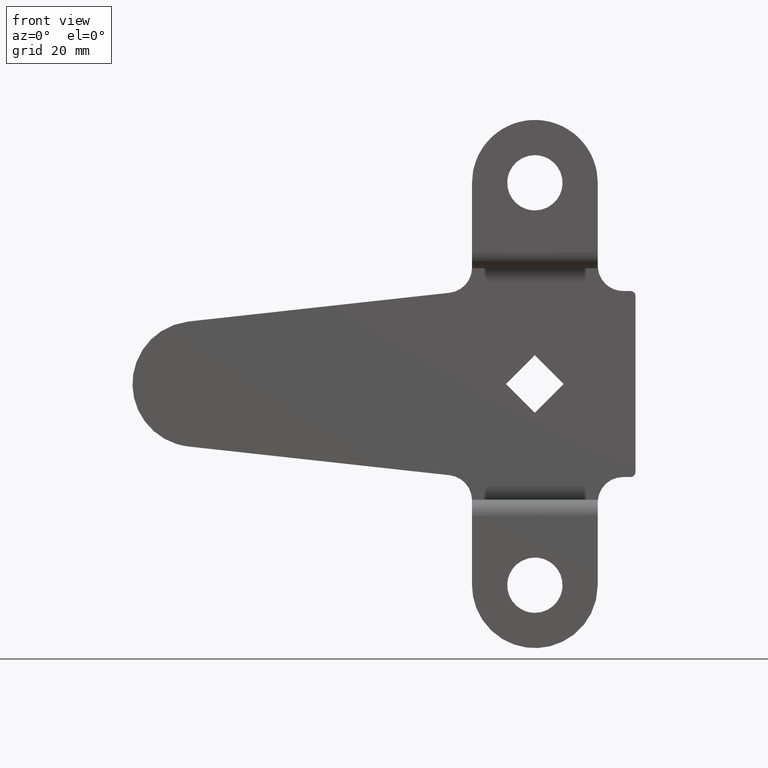
[diagram: clean part render]
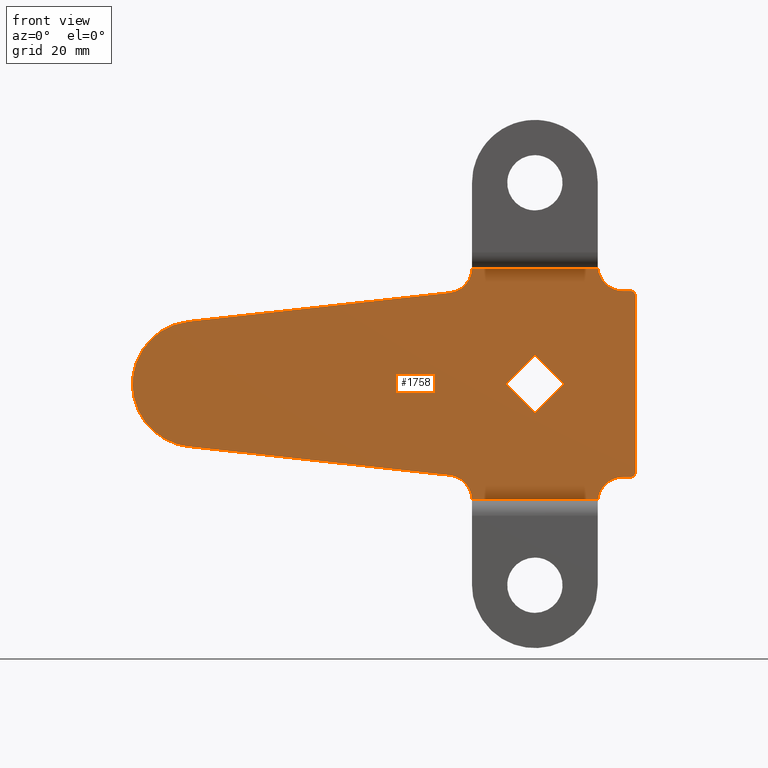
[diagram: same view with one face highlighted and labeled with its STEP entity id]
A machine part, front view. The second image highlights one B-rep face of the part: STEP entity #1758.
In plain terms, the highlighted face is a freeform B-spline surface patch.
Its self-contained STEP definition (entity closure, byte-faithful):
#422=CARTESIAN_POINT('',(0.0,-3.200000000000000,-5.728000000000000));
#423=VERTEX_POINT('',#422);
#429=CARTESIAN_POINT('',(5.727999999999810,-3.200000000000000,0.0));
#430=VERTEX_POINT('',#429);
#431=CARTESIAN_POINT('',(5.727999999999810,-3.200000000000000,0.0));
#432=CARTESIAN_POINT('',(0.0,-3.200000000000000,-5.728000000000000));
#433=QUASI_UNIFORM_CURVE('',1,(#431,#432),.UNSPECIFIED.,.F.,.U.);
#434=EDGE_CURVE('',#430,#423,#433,.T.);
#457=CARTESIAN_POINT('',(0.0,-3.200000000000000,5.728000000000000));
#458=VERTEX_POINT('',#457);
#459=CARTESIAN_POINT('',(0.0,-3.200000000000000,5.728000000000000));
#460=CARTESIAN_POINT('',(5.727999999999810,-3.200000000000000,0.0));
#461=QUASI_UNIFORM_CURVE('',1,(#459,#460),.UNSPECIFIED.,.F.,.U.);
#462=EDGE_CURVE('',#458,#430,#461,.T.);
#485=CARTESIAN_POINT('',(-5.727000000000091,-3.200000000000000,0.0));
#486=VERTEX_POINT('',#485);
#487=CARTESIAN_POINT('',(-5.727000000000091,-3.200000000000000,0.0));
#488=CARTESIAN_POINT('',(0.0,-3.200000000000000,5.728000000000000));
#489=QUASI_UNIFORM_CURVE('',1,(#487,#488),.UNSPECIFIED.,.F.,.U.);
#490=EDGE_CURVE('',#486,#458,#489,.T.);
#511=CARTESIAN_POINT('',(0.0,-3.200000000000000,-5.728000000000000));
#512=CARTESIAN_POINT('',(-5.727000000000091,-3.200000000000000,0.0));
#513=QUASI_UNIFORM_CURVE('',1,(#511,#512),.UNSPECIFIED.,.F.,.U.);
#514=EDGE_CURVE('',#423,#486,#513,.T.);
#680=CARTESIAN_POINT('',(19.0,-3.200000000000000,-18.500000000000000));
#681=VERTEX_POINT('',#680);
#704=CARTESIAN_POINT('',(20.0,-3.200000000000000,-17.500000000000000));
#705=VERTEX_POINT('',#704);
#711=CARTESIAN_POINT('',(19.0,-3.200000000000000,-18.500000000000000));
#712=CARTESIAN_POINT('',(19.999999999999996,-3.200000000000000,-18.500000000000000));
#713=CARTESIAN_POINT('',(20.0,-3.200000000000000,-17.500000000000000));
#721=(BOUNDED_CURVE()B_SPLINE_CURVE(2,(#711,#712,#713),.UNSPECIFIED.,.F.,.U.)CURVE()GEOMETRIC_REPRESENTATION_ITEM()QUASI_UNIFORM_CURVE()RATIONAL_B_SPLINE_CURVE((1.0,0.707106781186548,1.0))REPRESENTATION_ITEM(''));
#722=EDGE_CURVE('',#681,#705,#721,.T.);
#753=CARTESIAN_POINT('',(-12.501095239808000,-3.200000000000000,-23.0));
#754=VERTEX_POINT('',#753);
#760=CARTESIAN_POINT('',(-16.953000102619502,-3.200000000000000,-18.134999988712799));
#761=VERTEX_POINT('',#760);
#762=CARTESIAN_POINT('',(-12.501095239807981,-3.200000000000000,-23.0));
#763=CARTESIAN_POINT('',(-12.592904671233173,-3.200000000000000,-18.614570584797196));
#764=CARTESIAN_POINT('',(-16.953000102619502,-3.200000000000000,-18.134999988712789));
#772=(BOUNDED_CURVE()B_SPLINE_CURVE(2,(#762,#763,#764),.UNSPECIFIED.,.F.,.U.)CURVE()GEOMETRIC_REPRESENTATION_ITEM()QUASI_UNIFORM_CURVE()RATIONAL_B_SPLINE_CURVE((1.0,0.751702264617140,1.0))REPRESENTATION_ITEM(''));
#773=EDGE_CURVE('',#754,#761,#772,.T.);
#838=CARTESIAN_POINT('',(17.500000000000000,-3.200000000000000,-18.500000000000000));
#839=VERTEX_POINT('',#838);
#845=CARTESIAN_POINT('',(12.525062814466899,-3.200000000000000,-23.0));
#846=VERTEX_POINT('',#845);
#847=CARTESIAN_POINT('',(17.500000000000000,-3.200000000000000,-18.500000000000000));
#848=CARTESIAN_POINT('',(12.977329831333543,-3.200000000000001,-18.499999999999996));
#849=CARTESIAN_POINT('',(12.525062814466899,-3.200000000000000,-23.0));
#857=(BOUNDED_CURVE()B_SPLINE_CURVE(2,(#847,#848,#849),.UNSPECIFIED.,.F.,.U.)CURVE()GEOMETRIC_REPRESENTATION_ITEM()QUASI_UNIFORM_CURVE()RATIONAL_B_SPLINE_CURVE((1.0,0.741619848709566,1.0))REPRESENTATION_ITEM(''));
#858=EDGE_CURVE('',#839,#846,#857,.T.);
#953=CARTESIAN_POINT('',(-68.904913350384689,-3.200000000000000,-12.420763883107220));
#954=VERTEX_POINT('',#953);
#968=CARTESIAN_POINT('',(-68.904913350384689,-3.200000000000000,-12.420763883107220));
#969=CARTESIAN_POINT('',(-16.953000102619502,-3.200000000000000,-18.134999988712799));
#970=QUASI_UNIFORM_CURVE('',1,(#968,#969),.UNSPECIFIED.,.F.,.U.);
#971=EDGE_CURVE('',#954,#761,#970,.T.);
#988=CARTESIAN_POINT('',(17.500000000000000,-3.200000000000000,-18.500000000000000));
#989=CARTESIAN_POINT('',(19.0,-3.200000000000000,-18.500000000000000));
#990=QUASI_UNIFORM_CURVE('',1,(#988,#989),.UNSPECIFIED.,.F.,.U.);
#991=EDGE_CURVE('',#839,#681,#990,.T.);
#1010=CARTESIAN_POINT('',(20.0,-3.200000000000000,17.500000000000000));
#1011=VERTEX_POINT('',#1010);
#1034=CARTESIAN_POINT('',(19.0,-3.200000000000000,18.500000000000000));
#1035=VERTEX_POINT('',#1034);
#1041=CARTESIAN_POINT('',(20.0,-3.200000000000000,17.500000000000000));
#1042=CARTESIAN_POINT('',(19.999999999999996,-3.200000000000000,18.500000000000000));
#1043=CARTESIAN_POINT('',(19.0,-3.200000000000000,18.500000000000000));
#1051=(BOUNDED_CURVE()B_SPLINE_CURVE(2,(#1041,#1042,#1043),.UNSPECIFIED.,.F.,.U.)CURVE()GEOMETRIC_REPRESENTATION_ITEM()QUASI_UNIFORM_CURVE()RATIONAL_B_SPLINE_CURVE((1.0,0.707106781186548,1.0))REPRESENTATION_ITEM(''));
#1052=EDGE_CURVE('',#1011,#1035,#1051,.T.);
#1075=CARTESIAN_POINT('',(-68.904913350384689,-3.200000000000000,12.420763883107220));
#1076=VERTEX_POINT('',#1075);
#1100=CARTESIAN_POINT('',(-68.904913350384689,-3.200000000000000,12.420763883107220));
#1101=CARTESIAN_POINT('',(-79.999699999999990,-3.200000000000000,11.165563923874988));
#1102=CARTESIAN_POINT('',(-79.999699999999990,-3.200000000000000,0.0));
#1103=CARTESIAN_POINT('',(-79.999699999999990,-3.200000000000000,-11.165563923874988));
#1104=CARTESIAN_POINT('',(-68.904913350384689,-3.200000000000000,-12.420763883107220));
#1112=(BOUNDED_CURVE()B_SPLINE_CURVE(2,(#1100,#1101,#1102,#1103,#1104),.UNSPECIFIED.,.F.,.U.)B_SPLINE_CURVE_WITH_KNOTS((3,2,3),(0.0,0.500000000000000,1.0),.UNSPECIFIED.)CURVE()GEOMETRIC_REPRESENTATION_ITEM()RATIONAL_B_SPLINE_CURVE((1.0,0.745793895131482,1.0,0.745793895131482,1.0))REPRESENTATION_ITEM(''));
#1113=EDGE_CURVE('',#1076,#954,#1112,.T.);
#1348=CARTESIAN_POINT('',(-16.953000102619502,-3.200000000000000,18.134999988712799));
#1349=VERTEX_POINT('',#1348);
#1355=CARTESIAN_POINT('',(-12.501095239808000,-3.200000000000000,23.0));
#1356=VERTEX_POINT('',#1355);
#1357=CARTESIAN_POINT('',(-16.953000102619502,-3.200000000000000,18.134999988712789));
#1358=CARTESIAN_POINT('',(-12.592904671233178,-3.200000000000000,18.614570584797200));
#1359=CARTESIAN_POINT('',(-12.501095239807981,-3.200000000000000,23.0));
#1367=(BOUNDED_CURVE()B_SPLINE_CURVE(2,(#1357,#1358,#1359),.UNSPECIFIED.,.F.,.U.)CURVE()GEOMETRIC_REPRESENTATION_ITEM()QUASI_UNIFORM_CURVE()RATIONAL_B_SPLINE_CURVE((1.0,0.751702264617140,1.0))REPRESENTATION_ITEM(''));
#1368=EDGE_CURVE('',#1349,#1356,#1367,.T.);
#1429=CARTESIAN_POINT('',(12.525062814466899,-3.200000000000000,23.0));
#1430=VERTEX_POINT('',#1429);
#1436=CARTESIAN_POINT('',(17.500000000000000,-3.200000000000000,18.500000000000000));
#1437=VERTEX_POINT('',#1436);
#1438=CARTESIAN_POINT('',(12.525062814466899,-3.200000000000000,23.0));
#1439=CARTESIAN_POINT('',(12.977329831333547,-3.200000000000000,18.500000000000007));
#1440=CARTESIAN_POINT('',(17.500000000000000,-3.200000000000000,18.500000000000000));
#1448=(BOUNDED_CURVE()B_SPLINE_CURVE(2,(#1438,#1439,#1440),.UNSPECIFIED.,.F.,.U.)CURVE()GEOMETRIC_REPRESENTATION_ITEM()QUASI_UNIFORM_CURVE()RATIONAL_B_SPLINE_CURVE((1.0,0.741619848709566,1.0))REPRESENTATION_ITEM(''));
#1449=EDGE_CURVE('',#1430,#1437,#1448,.T.);
#1495=CARTESIAN_POINT('',(-16.953000102619502,-3.200000000000000,18.134999988712799));
#1496=CARTESIAN_POINT('',(-68.904913350384689,-3.200000000000000,12.420763883107220));
#1497=QUASI_UNIFORM_CURVE('',1,(#1495,#1496),.UNSPECIFIED.,.F.,.U.);
#1498=EDGE_CURVE('',#1349,#1076,#1497,.T.);
#1515=CARTESIAN_POINT('',(19.0,-3.200000000000000,18.500000000000000));
#1516=CARTESIAN_POINT('',(17.500000000000000,-3.200000000000000,18.500000000000000));
#1517=QUASI_UNIFORM_CURVE('',1,(#1515,#1516),.UNSPECIFIED.,.F.,.U.);
#1518=EDGE_CURVE('',#1035,#1437,#1517,.T.);
#1602=CARTESIAN_POINT('',(-12.501095239808000,-3.200000000000000,23.0));
#1603=CARTESIAN_POINT('',(12.525062814466899,-3.200000000000000,23.0));
#1604=QUASI_UNIFORM_CURVE('',1,(#1602,#1603),.UNSPECIFIED.,.F.,.U.);
#1605=EDGE_CURVE('',#1356,#1430,#1604,.T.);
#1642=CARTESIAN_POINT('',(20.0,-3.200000000000000,-17.500000000000000));
#1643=CARTESIAN_POINT('',(20.0,-3.200000000000000,17.500000000000000));
#1644=QUASI_UNIFORM_CURVE('',1,(#1642,#1643),.UNSPECIFIED.,.F.,.U.);
#1645=EDGE_CURVE('',#705,#1011,#1644,.T.);
#1663=CARTESIAN_POINT('',(-12.501095239808000,-3.200000000000000,-23.0));
#1664=CARTESIAN_POINT('',(12.525062814466899,-3.200000000000000,-23.0));
#1665=QUASI_UNIFORM_CURVE('',1,(#1663,#1664),.UNSPECIFIED.,.F.,.U.);
#1666=EDGE_CURVE('',#754,#846,#1665,.T.);
#1731=CARTESIAN_POINT('',(-84.994687637357927,-3.200000000000000,-25.297699910843079));
#1732=CARTESIAN_POINT('',(-84.994687637357927,-3.200000000000000,25.297701144659221));
#1733=CARTESIAN_POINT('',(24.994987637358062,-3.200000000000000,-25.297699910843079));
#1734=CARTESIAN_POINT('',(24.994987637358062,-3.200000000000000,25.297701144659221));
#1735=B_SPLINE_SURFACE_WITH_KNOTS('',1,1,((#1731,#1733),(#1732,#1734)),.UNSPECIFIED.,.F.,.F.,.U.,(2,2),(2,2),(0.0,50.595401055502300),(0.0,109.989675274716010),.UNSPECIFIED.);
#1736=ORIENTED_EDGE('',*,*,#991,.T.);
#1737=ORIENTED_EDGE('',*,*,#722,.T.);
#1738=ORIENTED_EDGE('',*,*,#1645,.T.);
#1739=ORIENTED_EDGE('',*,*,#1052,.T.);
#1740=ORIENTED_EDGE('',*,*,#1518,.T.);
#1741=ORIENTED_EDGE('',*,*,#1449,.F.);
#1742=ORIENTED_EDGE('',*,*,#1605,.F.);
#1743=ORIENTED_EDGE('',*,*,#1368,.F.);
#1744=ORIENTED_EDGE('',*,*,#1498,.T.);
#1745=ORIENTED_EDGE('',*,*,#1113,.T.);
#1746=ORIENTED_EDGE('',*,*,#971,.T.);
#1747=ORIENTED_EDGE('',*,*,#773,.F.);
#1748=ORIENTED_EDGE('',*,*,#1666,.T.);
#1749=ORIENTED_EDGE('',*,*,#858,.F.);
#1750=EDGE_LOOP('',(#1736,#1737,#1738,#1739,#1740,#1741,#1742,#1743,#1744,#1745,#1746,#1747,#1748,#1749));
#1751=FACE_OUTER_BOUND('',#1750,.T.);
#1752=ORIENTED_EDGE('',*,*,#434,.T.);
#1753=ORIENTED_EDGE('',*,*,#514,.T.);
#1754=ORIENTED_EDGE('',*,*,#490,.T.);
#1755=ORIENTED_EDGE('',*,*,#462,.T.);
#1756=EDGE_LOOP('',(#1752,#1753,#1754,#1755));
#1757=FACE_BOUND('',#1756,.T.);
#1758=ADVANCED_FACE('',(#1751,#1757),#1735,.F.);